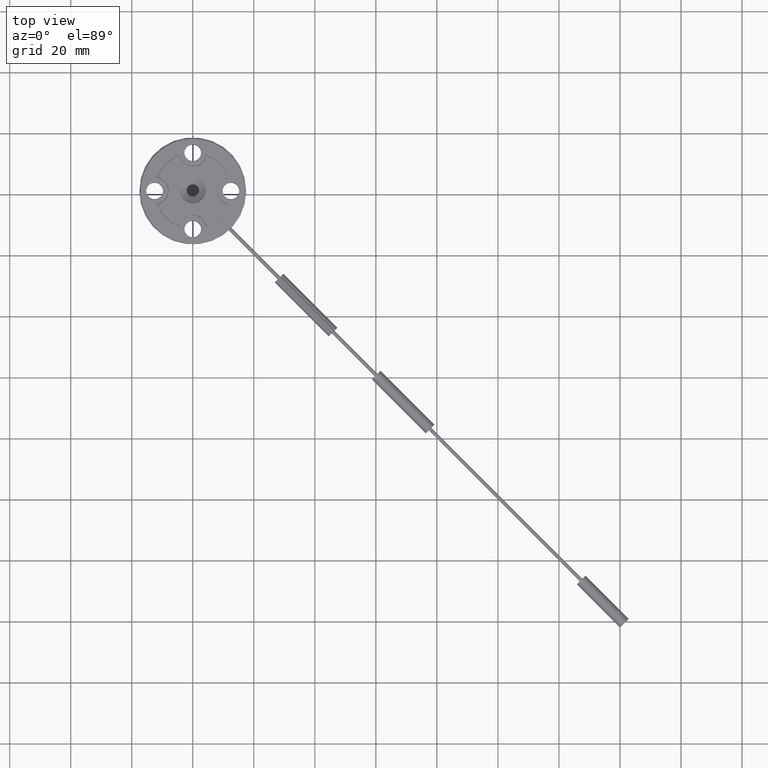
[diagram: clean part render]
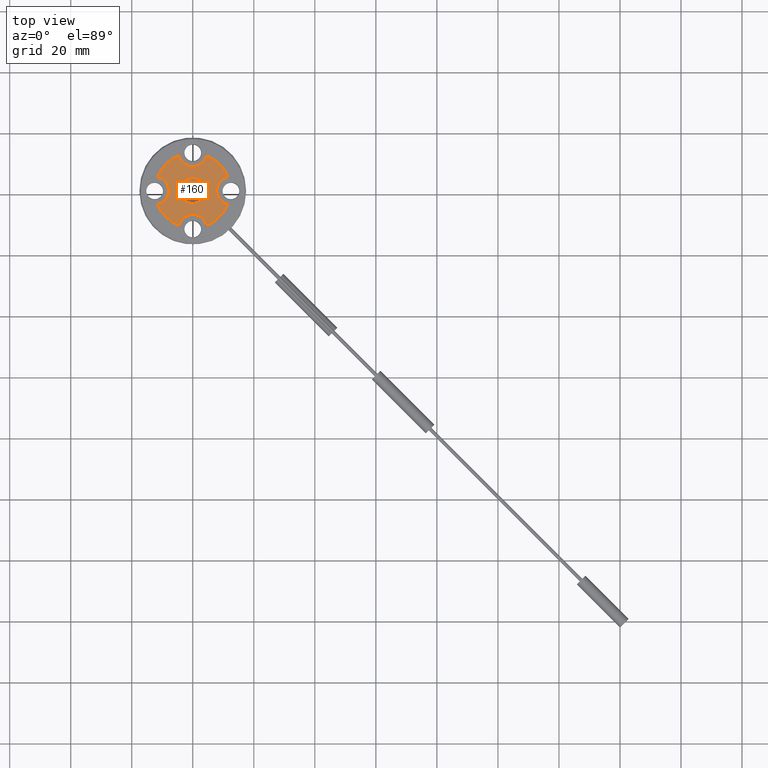
[diagram: same view with one face highlighted and labeled with its STEP entity id]
A machine part, top view. The second image highlights one B-rep face of the part: STEP entity #160.
In plain terms, the highlighted planar face has unit normal (0, 0, 1).
Its self-contained STEP definition (entity closure, byte-faithful):
#71=PLANE('',#1130);
#160=ADVANCED_FACE('',(#380,#381),#71,.T.);
#262=CIRCLE('',#1099,4.2426406871193);
#277=CIRCLE('',#1121,12.3);
#278=CIRCLE('',#1123,12.3);
#279=CIRCLE('',#1124,4.65);
#280=CIRCLE('',#1125,4.65);
#281=CIRCLE('',#1126,12.3);
#282=CIRCLE('',#1127,4.65);
#283=CIRCLE('',#1128,12.3);
#284=CIRCLE('',#1129,4.65);
#380=FACE_BOUND('',#517,.T.);
#381=FACE_BOUND('',#518,.T.);
#517=EDGE_LOOP('',(#690));
#518=EDGE_LOOP('',(#691,#692,#693,#694,#695,#696,#697,#698));
#690=ORIENTED_EDGE('',*,*,#953,.T.);
#691=ORIENTED_EDGE('',*,*,#979,.T.);
#692=ORIENTED_EDGE('',*,*,#980,.T.);
#693=ORIENTED_EDGE('',*,*,#976,.T.);
#694=ORIENTED_EDGE('',*,*,#981,.T.);
#695=ORIENTED_EDGE('',*,*,#982,.T.);
#696=ORIENTED_EDGE('',*,*,#983,.T.);
#697=ORIENTED_EDGE('',*,*,#984,.T.);
#698=ORIENTED_EDGE('',*,*,#985,.T.);
#860=VERTEX_POINT('',#1830);
#879=VERTEX_POINT('',#1879);
#880=VERTEX_POINT('',#1880);
#881=VERTEX_POINT('',#1891);
#882=VERTEX_POINT('',#1892);
#883=VERTEX_POINT('',#1895);
#884=VERTEX_POINT('',#1897);
#885=VERTEX_POINT('',#1899);
#886=VERTEX_POINT('',#1901);
#953=EDGE_CURVE('',#860,#860,#262,.T.);
#976=EDGE_CURVE('',#879,#880,#277,.T.);
#979=EDGE_CURVE('',#881,#882,#278,.T.);
#980=EDGE_CURVE('',#882,#879,#279,.T.);
#981=EDGE_CURVE('',#880,#883,#280,.T.);
#982=EDGE_CURVE('',#883,#884,#281,.T.);
#983=EDGE_CURVE('',#884,#885,#282,.T.);
#984=EDGE_CURVE('',#885,#886,#283,.T.);
#985=EDGE_CURVE('',#886,#881,#284,.T.);
#1099=AXIS2_PLACEMENT_3D('',#1829,#1325,#1326);
#1121=AXIS2_PLACEMENT_3D('',#1878,#1377,#1378);
#1123=AXIS2_PLACEMENT_3D('',#1890,#1381,#1382);
#1124=AXIS2_PLACEMENT_3D('',#1893,#1383,#1384);
#1125=AXIS2_PLACEMENT_3D('',#1894,#1385,#1386);
#1126=AXIS2_PLACEMENT_3D('',#1896,#1387,#1388);
#1127=AXIS2_PLACEMENT_3D('',#1898,#1389,#1390);
#1128=AXIS2_PLACEMENT_3D('',#1900,#1391,#1392);
#1129=AXIS2_PLACEMENT_3D('',#1902,#1393,#1394);
#1130=AXIS2_PLACEMENT_3D('',#1903,#1395,#1396);
#1325=DIRECTION('',(0.,0.,-1.));
#1326=DIRECTION('',(1.,0.,0.));
#1377=DIRECTION('',(0.,0.,1.));
#1378=DIRECTION('',(1.,0.,0.));
#1381=DIRECTION('',(0.,0.,1.));
#1382=DIRECTION('',(1.,0.,0.));
#1383=DIRECTION('',(0.,0.,-1.));
#1384=DIRECTION('',(1.,0.,0.));
#1385=DIRECTION('',(0.,0.,-1.));
#1386=DIRECTION('',(1.,0.,0.));
#1387=DIRECTION('',(0.,0.,1.));
#1388=DIRECTION('',(1.,0.,0.));
#1389=DIRECTION('',(0.,0.,-1.));
#1390=DIRECTION('',(1.,0.,0.));
#1391=DIRECTION('',(0.,0.,1.));
#1392=DIRECTION('',(1.,0.,0.));
#1393=DIRECTION('',(0.,0.,-1.));
#1394=DIRECTION('',(1.,0.,0.));
#1395=DIRECTION('',(0.,0.,1.));
#1396=DIRECTION('',(1.,0.,0.));
#1829=CARTESIAN_POINT('',(0.,0.,2.08166817117217E-14));
#1830=CARTESIAN_POINT('',(4.2426406871193,0.,2.08166817117217E-14));
#1878=CARTESIAN_POINT('',(0.,0.,2.08166817117217E-14));
#1879=CARTESIAN_POINT('',(-11.4367,-4.52679722430771,2.08166817117217E-14));
#1880=CARTESIAN_POINT('',(-4.52679722430771,-11.4367,2.08166817117217E-14));
#1890=CARTESIAN_POINT('',(0.,0.,2.08166817117217E-14));
#1891=CARTESIAN_POINT('',(-4.52679722430771,11.4367,2.08166817117217E-14));
#1892=CARTESIAN_POINT('',(-11.4367,4.52679722430771,2.08166817117217E-14));
#1893=CARTESIAN_POINT('',(-12.5,0.,2.08166817117217E-14));
#1894=CARTESIAN_POINT('',(0.,-12.5,2.08166817117217E-14));
#1895=CARTESIAN_POINT('',(4.52679722430771,-11.4367,2.08166817117217E-14));
#1896=CARTESIAN_POINT('',(0.,0.,2.08166817117217E-14));
#1897=CARTESIAN_POINT('',(11.4367,-4.52679722430771,2.08166817117217E-14));
#1898=CARTESIAN_POINT('',(12.5,0.,2.08166817117217E-14));
#1899=CARTESIAN_POINT('',(11.4367,4.52679722430771,2.08166817117217E-14));
#1900=CARTESIAN_POINT('',(0.,0.,2.08166817117217E-14));
#1901=CARTESIAN_POINT('',(4.52679722430771,11.4367,2.08166817117217E-14));
#1902=CARTESIAN_POINT('',(0.,12.5,2.08166817117217E-14));
#1903=CARTESIAN_POINT('',(0.,0.,2.08166817117217E-14));